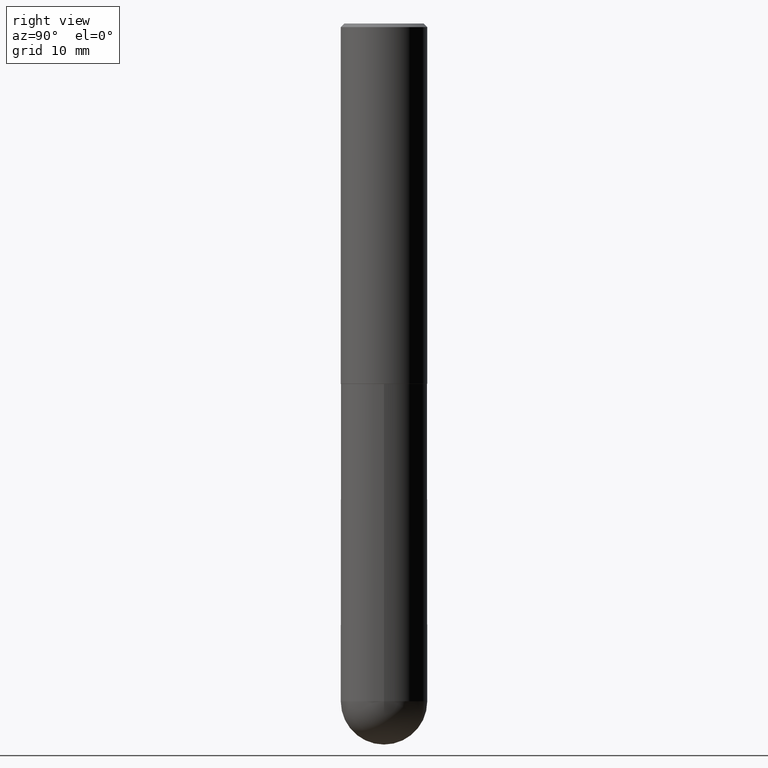
[diagram: clean part render]
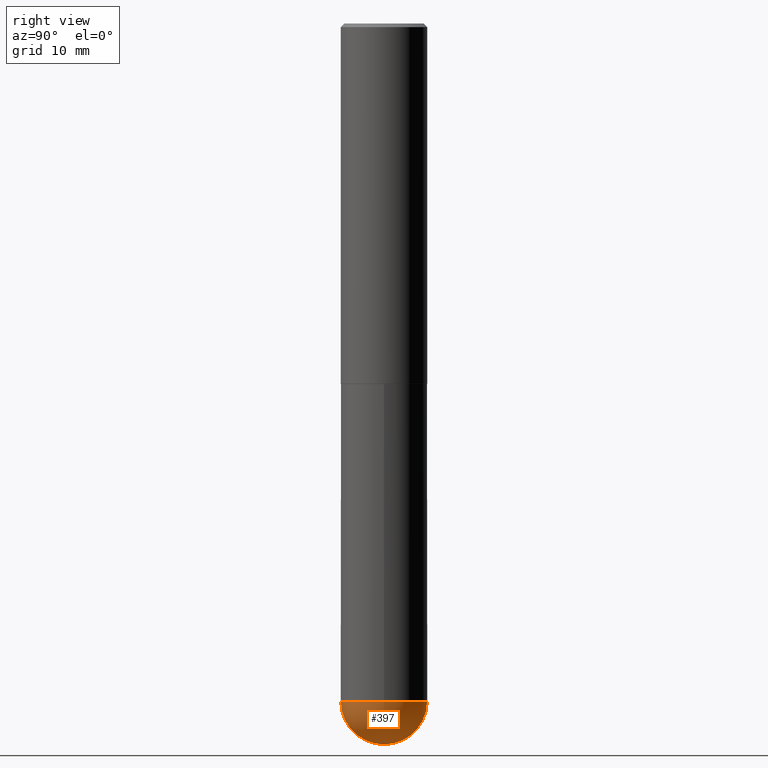
[diagram: same view with one face highlighted and labeled with its STEP entity id]
A machine part, right view. The second image highlights one B-rep face of the part: STEP entity #397.
In plain terms, the highlighted spherical surface has radius 5.9995 mm.
Its self-contained STEP definition (entity closure, byte-faithful):
#23 = EDGE_CURVE ( 'NONE', #375, #161, #308, .T. ) ;
#25 = CARTESIAN_POINT ( 'NONE',  ( 9.050190957929953666E-29, -1.292127413879071357E-14, -3.700800000000000090 ) ) ;
#26 = ORIENTED_EDGE ( 'NONE', *, *, #23, .F. ) ;
#44 = DIRECTION ( 'NONE',  ( -1.000000000000000000, 7.105427357601001070E-15, -4.926315508542082329E-29 ) ) ;
#55 = AXIS2_PLACEMENT_3D ( 'NONE', #25, #118, #222 ) ;
#61 = VERTEX_POINT ( 'NONE', #202 ) ;
#62 = ORIENTED_EDGE ( 'NONE', *, *, #101, .F. ) ;
#88 = VERTEX_POINT ( 'NONE', #359 ) ;
#101 = EDGE_CURVE ( 'NONE', #88, #61, #295, .T. ) ;
#103 = AXIS2_PLACEMENT_3D ( 'NONE', #298, #44, #304 ) ;
#118 = DIRECTION ( 'NONE',  ( -2.445468806185136597E-29, 3.491481338843145583E-15, 1.000000000000000000 ) ) ;
#123 = DIRECTION ( 'NONE',  ( 6.982962677686265922E-15, 1.000000000000000000, 0.000000000000000000 ) ) ;
#126 = DIRECTION ( 'NONE',  ( 6.982962677686265922E-15, 1.000000000000000000, -4.626330217890364603E-15 ) ) ;
#155 = DIRECTION ( 'NONE',  ( -1.000000000000000000, 6.982962677686265922E-15, -4.883557194083112901E-29 ) ) ;
#160 = DIRECTION ( 'NONE',  ( 1.000000000000000000, -6.982962677686265133E-15, 0.000000000000000000 ) ) ;
#161 = VERTEX_POINT ( 'NONE', #185 ) ;
#185 = CARTESIAN_POINT ( 'NONE',  ( 1.649375784469585666E-15, 0.2361999999999869759, -3.700800000000000978 ) ) ;
#187 = SPHERICAL_SURFACE ( 'NONE', #236, 0.2362000000000002709 ) ;
#202 = CARTESIAN_POINT ( 'NONE',  ( -1.678301941865268633E-15, -0.2362000000000132882, -3.700799999999998757 ) ) ;
#211 = AXIS2_PLACEMENT_3D ( 'NONE', #403, #263, #123 ) ;
#222 = DIRECTION ( 'NONE',  ( 1.000000000000000000, -6.982962677686265133E-15, 0.000000000000000000 ) ) ;
#236 = AXIS2_PLACEMENT_3D ( 'NONE', #342, #155, #126 ) ;
#248 = CARTESIAN_POINT ( 'NONE',  ( 9.050190957929953666E-29, -1.292127413879071357E-14, -3.700800000000000090 ) ) ;
#262 = EDGE_LOOP ( 'NONE', ( #62, #276, #26, #322 ) ) ;
#263 = DIRECTION ( 'NONE',  ( 1.000000000000000000, -6.982962677686265922E-15, 4.883557194083112340E-29 ) ) ;
#276 = ORIENTED_EDGE ( 'NONE', *, *, #389, .T. ) ;
#278 = CIRCLE ( 'NONE', #211, 0.2362000000000002709 ) ;
#295 = CIRCLE ( 'NONE', #103, 0.2362000000000002709 ) ;
#296 = CIRCLE ( 'NONE', #358, 0.2361999999999999933 ) ;
#298 = CARTESIAN_POINT ( 'NONE',  ( 8.719071180016067419E-29, -1.339545650693076387E-14, -3.700800000000000090 ) ) ;
#304 = DIRECTION ( 'NONE',  ( -7.105427357601001070E-15, -1.000000000000000000, 0.000000000000000000 ) ) ;
#308 = CIRCLE ( 'NONE', #55, 0.2361999999999999933 ) ;
#313 = EDGE_CURVE ( 'NONE', #61, #375, #296, .T. ) ;
#322 = ORIENTED_EDGE ( 'NONE', *, *, #313, .F. ) ;
#342 = CARTESIAN_POINT ( 'NONE',  ( 8.719071180016067419E-29, -1.339545650693076387E-14, -3.700800000000000090 ) ) ;
#349 = FACE_OUTER_BOUND ( 'NONE', #262, .T. ) ;
#358 = AXIS2_PLACEMENT_3D ( 'NONE', #248, #363, #160 ) ;
#359 = CARTESIAN_POINT ( 'NONE',  ( 9.306790425912204830E-29, -1.420568132046758614E-14, -3.937000000000000277 ) ) ;
#363 = DIRECTION ( 'NONE',  ( -2.445468806185136597E-29, 3.491481338843145583E-15, 1.000000000000000000 ) ) ;
#375 = VERTEX_POINT ( 'NONE', #399 ) ;
#389 = EDGE_CURVE ( 'NONE', #88, #161, #278, .T. ) ;
#397 = ADVANCED_FACE ( 'NONE', ( #349 ), #187, .T. ) ;
#399 = CARTESIAN_POINT ( 'NONE',  ( 0.2361999999999999933, -1.154650336162122153E-14, -3.700800000000000090 ) ) ;
#403 = CARTESIAN_POINT ( 'NONE',  ( 8.719071180016067419E-29, -1.339545650693076387E-14, -3.700800000000000090 ) ) ;